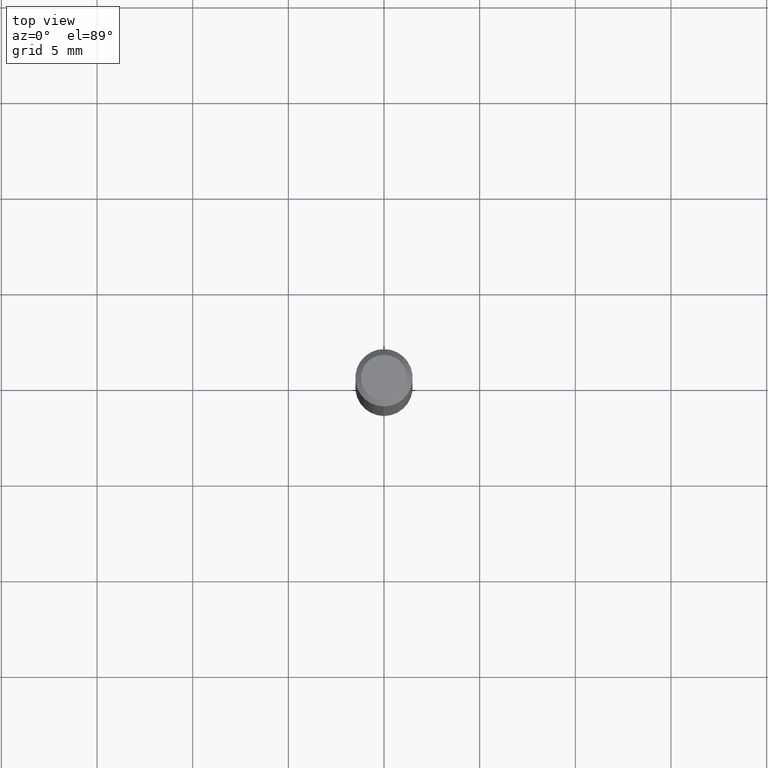
[diagram: clean part render]
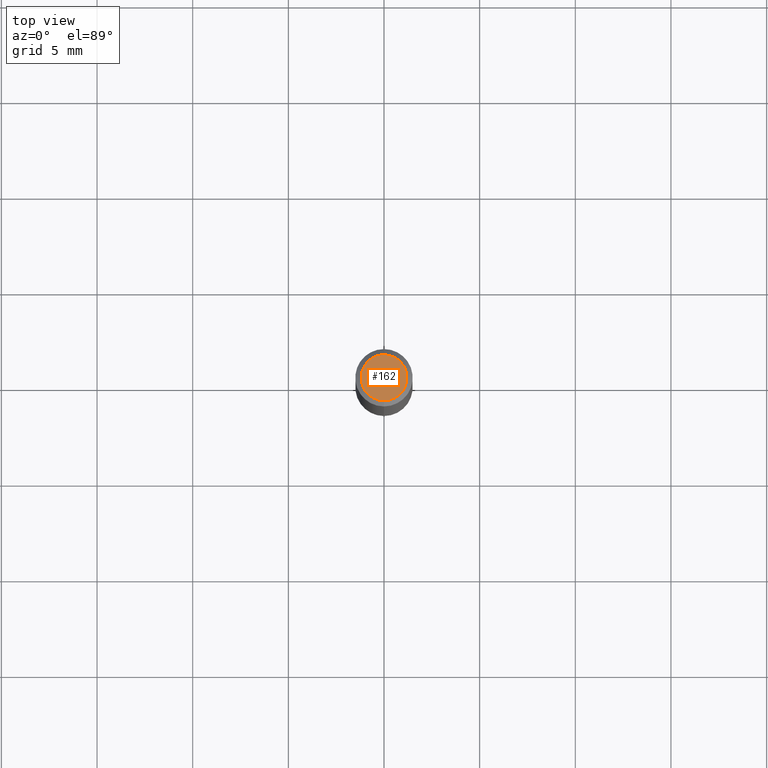
[diagram: same view with one face highlighted and labeled with its STEP entity id]
A machine part, top view. The second image highlights one B-rep face of the part: STEP entity #162.
In plain terms, the highlighted planar face has unit normal (-0, 0, 1).
Its self-contained STEP definition (entity closure, byte-faithful):
#120=EDGE_CURVE('',#164,#216,#299,.T.);
#160=EDGE_CURVE('',#216,#164,#342,.T.);
#162=ADVANCED_FACE('',(#344),#345,.T.);
#164=VERTEX_POINT('',#347);
#216=VERTEX_POINT('',#406);
#299=CIRCLE('',#491,1.2);
#342=CIRCLE('',#546,1.2);
#344=FACE_OUTER_BOUND('',#548,.T.);
#345=PLANE('',#549);
#347=CARTESIAN_POINT('',(0.0,1.2,0.0));
#406=CARTESIAN_POINT('',(1.46952762458685E-016,-1.2,0.0));
#491=AXIS2_PLACEMENT_3D('',#727,#728,#729);
#546=AXIS2_PLACEMENT_3D('',#778,#779,#780);
#548=EDGE_LOOP('',(#782,#783));
#549=AXIS2_PLACEMENT_3D('',#784,#785,#786);
#727=CARTESIAN_POINT('',(0.0,0.0,0.0));
#728=DIRECTION('',(0.0,0.0,-1.0));
#729=DIRECTION('',(0.0,1.0,0.0));
#778=CARTESIAN_POINT('',(0.0,0.0,0.0));
#779=DIRECTION('',(0.0,0.0,-1.0));
#780=DIRECTION('',(0.0,1.0,0.0));
#782=ORIENTED_EDGE('',*,*,#120,.F.);
#783=ORIENTED_EDGE('',*,*,#160,.F.);
#784=CARTESIAN_POINT('',(0.0,0.6,0.0));
#785=DIRECTION('',(-0.0,0.0,1.0));
#786=DIRECTION('',(0.0,-1.0,0.0));